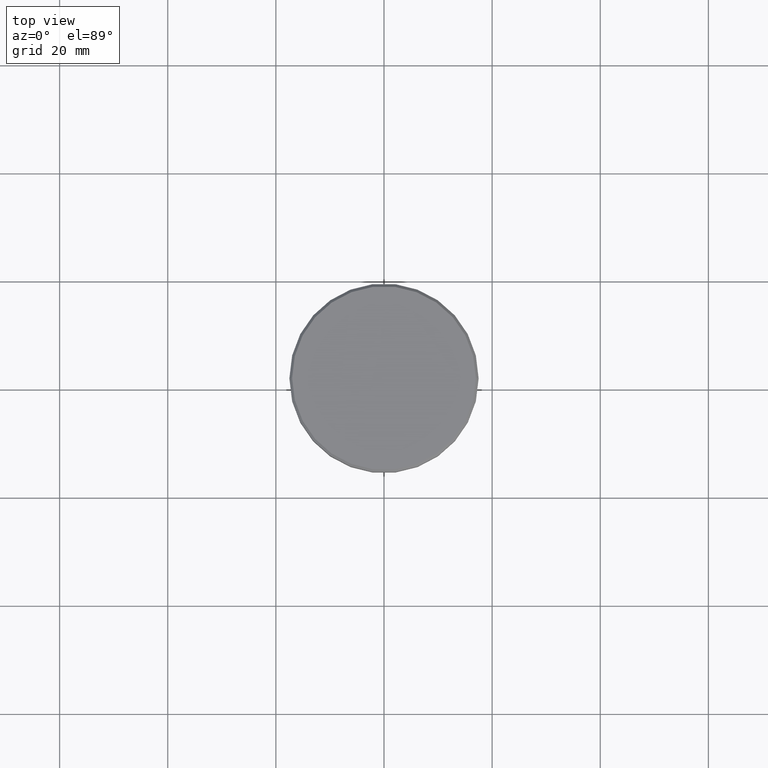
[diagram: clean part render]
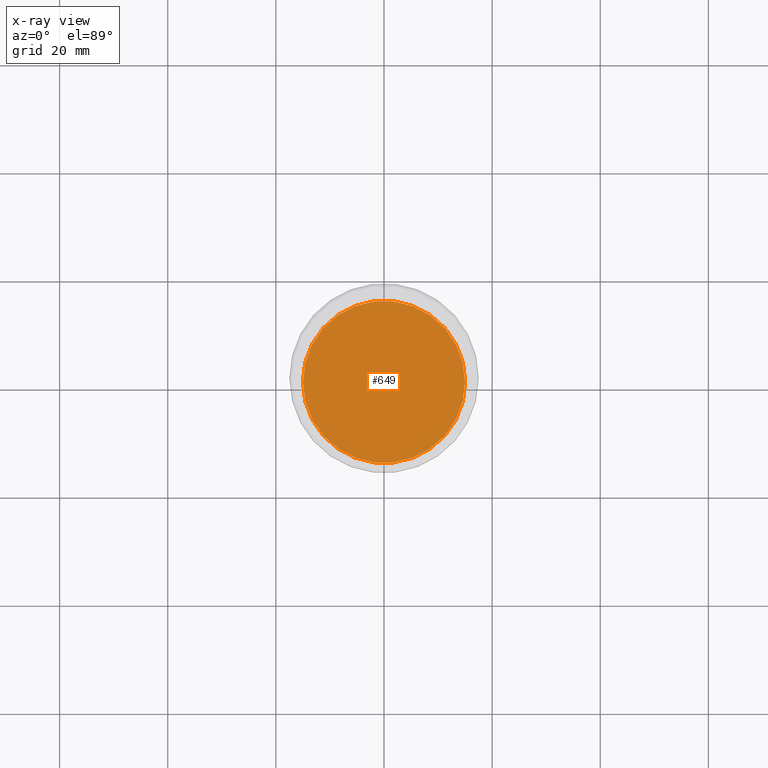
[diagram: x-ray — body ghosted, one internal face saturated and labeled with its STEP entity id]
A machine part, top view, then the same camera in x-ray: the body is ghosted and one INTERNAL B-rep face — a face not visible from any outside direction — is saturated and labeled: STEP entity #649.
In plain terms, the highlighted planar face has unit normal (0, 0, -1).
Its self-contained STEP definition (entity closure, byte-faithful):
#18 = FACE_OUTER_BOUND ( 'NONE', #818, .T. ) ;
#94 = CIRCLE ( 'NONE', #193, 15.00000000000000000 ) ;
#119 = CARTESIAN_POINT ( 'NONE',  ( 0.000000000000000000, 0.000000000000000000, -41.99999999999999289 ) ) ;
#154 = ORIENTED_EDGE ( 'NONE', *, *, #238, .T. ) ;
#193 = AXIS2_PLACEMENT_3D ( 'NONE', #687, #337, #599 ) ;
#223 = CARTESIAN_POINT ( 'NONE',  ( -15.00000000000000000, 1.836970198721029194E-15, -41.99999999999999289 ) ) ;
#234 = CARTESIAN_POINT ( 'NONE',  ( 0.000000000000000000, 0.000000000000000000, -41.99999999999999289 ) ) ;
#238 = EDGE_CURVE ( 'NONE', #575, #689, #94, .T. ) ;
#304 = DIRECTION ( 'NONE',  ( -1.000000000000000000, 0.000000000000000000, -0.000000000000000000 ) ) ;
#337 = DIRECTION ( 'NONE',  ( 0.000000000000000000, 0.000000000000000000, -1.000000000000000000 ) ) ;
#372 = DIRECTION ( 'NONE',  ( 0.000000000000000000, 0.000000000000000000, -1.000000000000000000 ) ) ;
#437 = CIRCLE ( 'NONE', #875, 15.00000000000000000 ) ;
#516 = DIRECTION ( 'NONE',  ( 0.000000000000000000, 0.000000000000000000, -1.000000000000000000 ) ) ;
#575 = VERTEX_POINT ( 'NONE', #976 ) ;
#599 = DIRECTION ( 'NONE',  ( -1.000000000000000000, 0.000000000000000000, 0.000000000000000000 ) ) ;
#649 = ADVANCED_FACE ( 'NONE', ( #18 ), #905, .T. ) ;
#687 = CARTESIAN_POINT ( 'NONE',  ( 0.000000000000000000, 0.000000000000000000, -41.99999999999999289 ) ) ;
#689 = VERTEX_POINT ( 'NONE', #223 ) ;
#818 = EDGE_LOOP ( 'NONE', ( #154, #1005 ) ) ;
#871 = EDGE_CURVE ( 'NONE', #689, #575, #437, .T. ) ;
#873 = AXIS2_PLACEMENT_3D ( 'NONE', #119, #372, #304 ) ;
#875 = AXIS2_PLACEMENT_3D ( 'NONE', #234, #516, #949 ) ;
#905 = PLANE ( 'NONE',  #873 ) ;
#949 = DIRECTION ( 'NONE',  ( -1.000000000000000000, 0.000000000000000000, 0.000000000000000000 ) ) ;
#976 = CARTESIAN_POINT ( 'NONE',  ( 15.00000000000000000, 0.000000000000000000, -41.99999999999999289 ) ) ;
#1005 = ORIENTED_EDGE ( 'NONE', *, *, #871, .T. ) ;